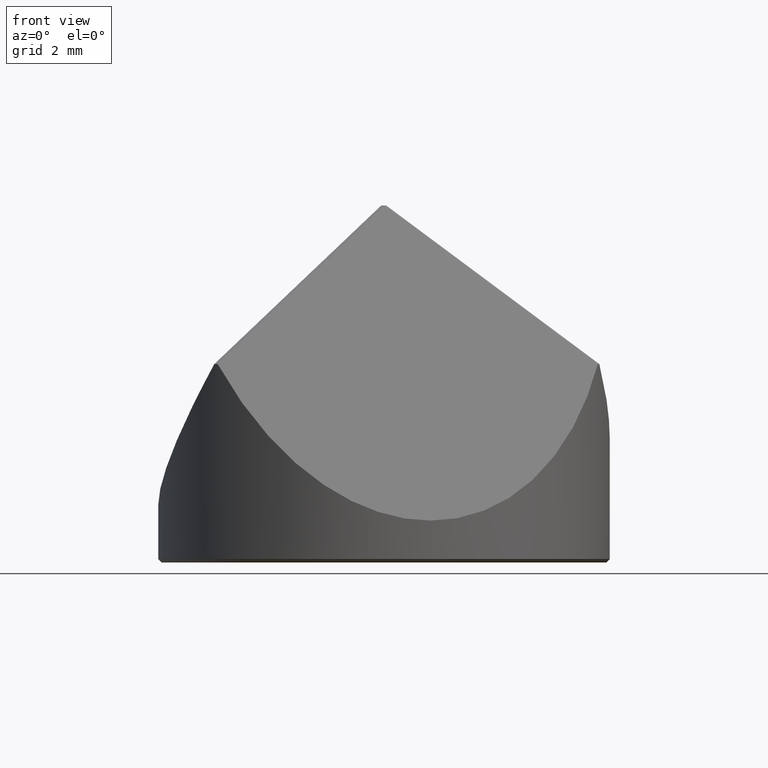
[diagram: clean part render]
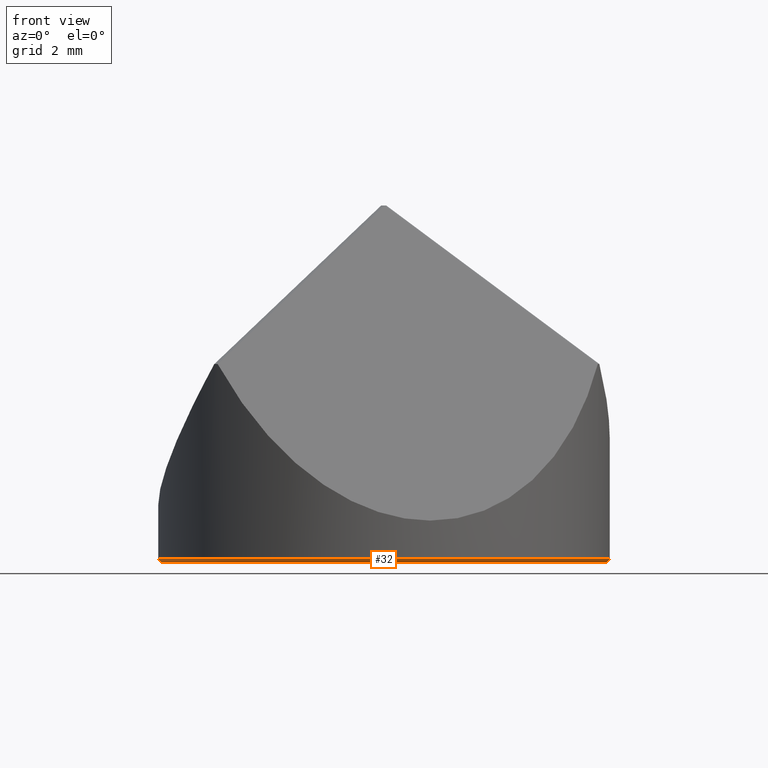
[diagram: same view with one face highlighted and labeled with its STEP entity id]
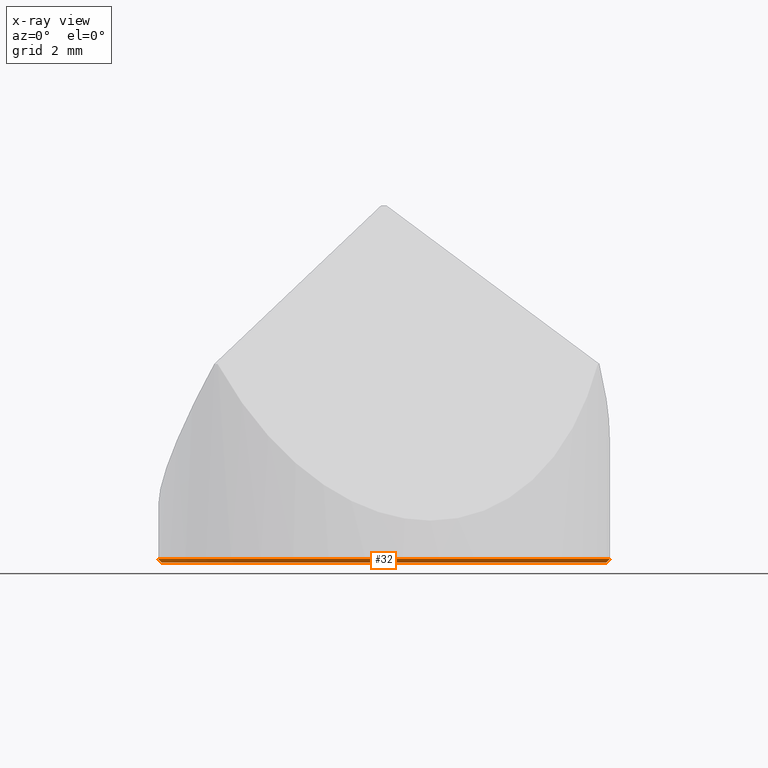
[diagram: x-ray of the same camera — body ghosted, the highlighted face saturated]
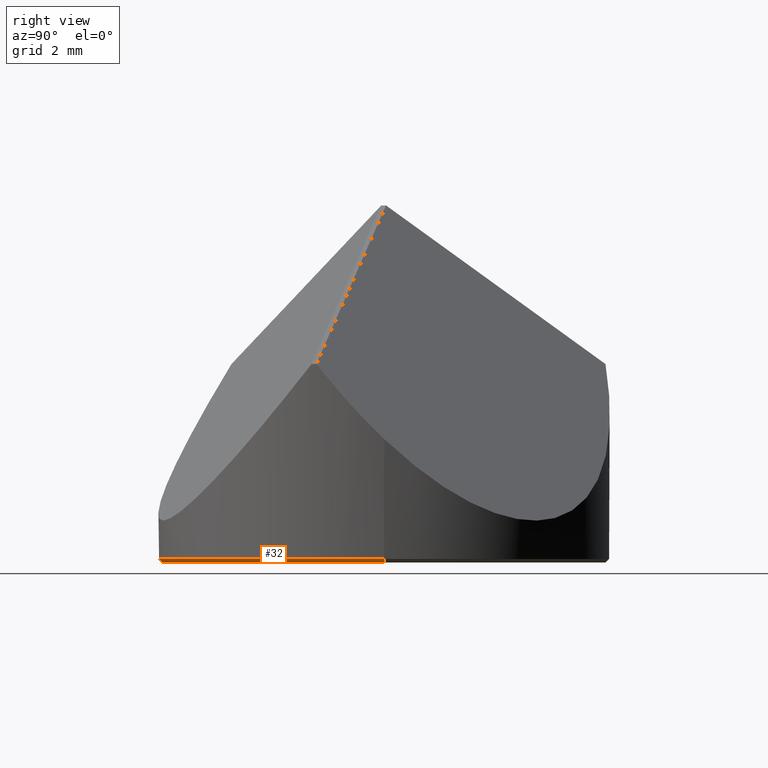
[diagram: same view with one face highlighted and labeled with its STEP entity id]
A machine part, front view. The second image highlights one B-rep face of the part: STEP entity #32.
The next image is the same camera in x-ray: the body ghosted, the highlighted face saturated — about 0% of this face is hidden behind the body in this view.
A second angle (right view) of the same face is appended — the face is thin or edge-on in the first view.
In plain terms, the highlighted conical surface has half-angle 45 deg.
Its self-contained STEP definition (entity closure, byte-faithful):
#7 = EDGE_LOOP ( 'NONE', ( #315, #55, #190, #287 ) ) ;
#9 = VECTOR ( 'NONE', #64, 1000.000000000000000 ) ;
#16 = EDGE_CURVE ( 'NONE', #226, #189, #292, .T. ) ;
#24 = CARTESIAN_POINT ( 'NONE',  ( 6.250000000000000000, 0.000000000000000000, -0.6700000000000000400 ) ) ;
#29 = VECTOR ( 'NONE', #114, 1000.000000000000000 ) ;
#32 = ADVANCED_FACE ( 'NONE', ( #119 ), #116, .T. ) ;
#36 = CARTESIAN_POINT ( 'NONE',  ( 0.000000000000000000, 0.000000000000000000, -0.6699999999999995959 ) ) ;
#55 = ORIENTED_EDGE ( 'NONE', *, *, #225, .F. ) ;
#64 = DIRECTION ( 'NONE',  ( 0.7071067811865505703, 0.000000000000000000, 0.7071067811865444641 ) ) ;
#70 = CARTESIAN_POINT ( 'NONE',  ( -6.349999999999999645, 0.000000000000000000, -0.5700000000000019496 ) ) ;
#71 = DIRECTION ( 'NONE',  ( 0.000000000000000000, 0.000000000000000000, 1.000000000000000000 ) ) ;
#91 = CARTESIAN_POINT ( 'NONE',  ( -6.250000000000000888, 7.654042494670958593E-16, -0.6699999999999995959 ) ) ;
#114 = DIRECTION ( 'NONE',  ( -0.7071067811865505703, 8.659560562354971069E-17, 0.7071067811865444641 ) ) ;
#116 = CONICAL_SURFACE ( 'NONE', #232, 6.250000000000000888, 0.7853981633974526089 ) ;
#119 = FACE_OUTER_BOUND ( 'NONE', #7, .T. ) ;
#125 = AXIS2_PLACEMENT_3D ( 'NONE', #217, #71, #361 ) ;
#128 = CARTESIAN_POINT ( 'NONE',  ( 0.000000000000000000, 0.000000000000000000, -0.6700000000000000400 ) ) ;
#137 = VERTEX_POINT ( 'NONE', #358 ) ;
#143 = CARTESIAN_POINT ( 'NONE',  ( 6.250000000000000888, 0.000000000000000000, -0.6699999999999995959 ) ) ;
#144 = DIRECTION ( 'NONE',  ( 1.000000000000000000, 0.000000000000000000, 0.000000000000000000 ) ) ;
#166 = VERTEX_POINT ( 'NONE', #24 ) ;
#171 = CIRCLE ( 'NONE', #125, 6.349999999999999645 ) ;
#173 = LINE ( 'NONE', #143, #9 ) ;
#189 = VERTEX_POINT ( 'NONE', #70 ) ;
#190 = ORIENTED_EDGE ( 'NONE', *, *, #231, .T. ) ;
#201 = EDGE_CURVE ( 'NONE', #189, #137, #171, .T. ) ;
#212 = AXIS2_PLACEMENT_3D ( 'NONE', #128, #274, #243 ) ;
#217 = CARTESIAN_POINT ( 'NONE',  ( 0.000000000000000000, 0.000000000000000000, -0.5700000000000019496 ) ) ;
#225 = EDGE_CURVE ( 'NONE', #166, #226, #324, .T. ) ;
#226 = VERTEX_POINT ( 'NONE', #326 ) ;
#231 = EDGE_CURVE ( 'NONE', #166, #137, #173, .T. ) ;
#232 = AXIS2_PLACEMENT_3D ( 'NONE', #36, #329, #144 ) ;
#243 = DIRECTION ( 'NONE',  ( -1.000000000000000000, 0.000000000000000000, 0.000000000000000000 ) ) ;
#274 = DIRECTION ( 'NONE',  ( 0.000000000000000000, 0.000000000000000000, -1.000000000000000000 ) ) ;
#287 = ORIENTED_EDGE ( 'NONE', *, *, #201, .F. ) ;
#292 = LINE ( 'NONE', #91, #29 ) ;
#315 = ORIENTED_EDGE ( 'NONE', *, *, #16, .F. ) ;
#324 = CIRCLE ( 'NONE', #212, 6.250000000000000000 ) ;
#326 = CARTESIAN_POINT ( 'NONE',  ( -6.250000000000000000, 7.715274834628325378E-16, -0.6700000000000000400 ) ) ;
#329 = DIRECTION ( 'NONE',  ( 0.000000000000000000, 0.000000000000000000, 1.000000000000000000 ) ) ;
#358 = CARTESIAN_POINT ( 'NONE',  ( 6.349999999999999645, 7.776507174585692163E-16, -0.5700000000000019496 ) ) ;
#361 = DIRECTION ( 'NONE',  ( -1.000000000000000000, 0.000000000000000000, 0.000000000000000000 ) ) ;